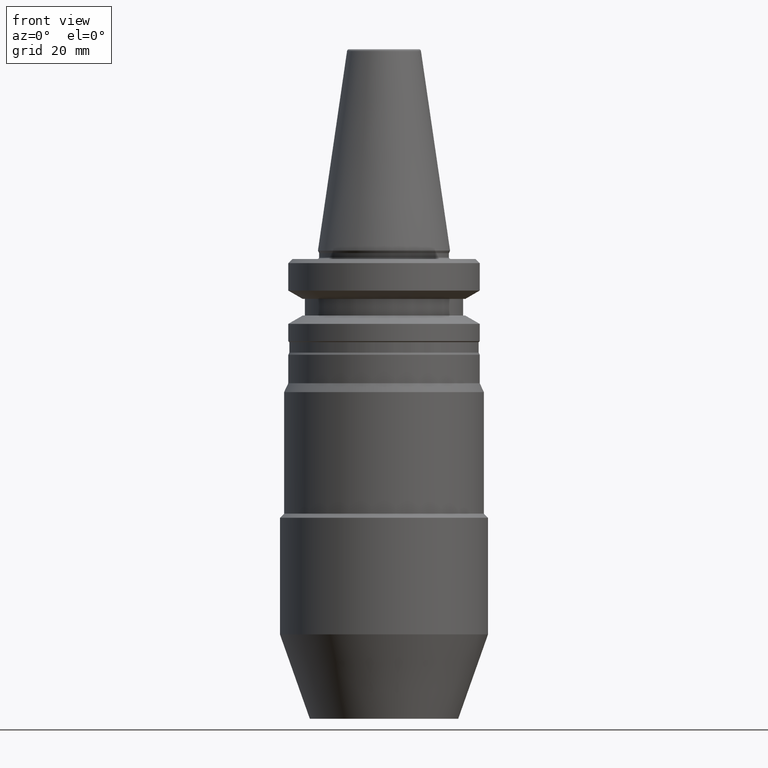
[diagram: clean part render]
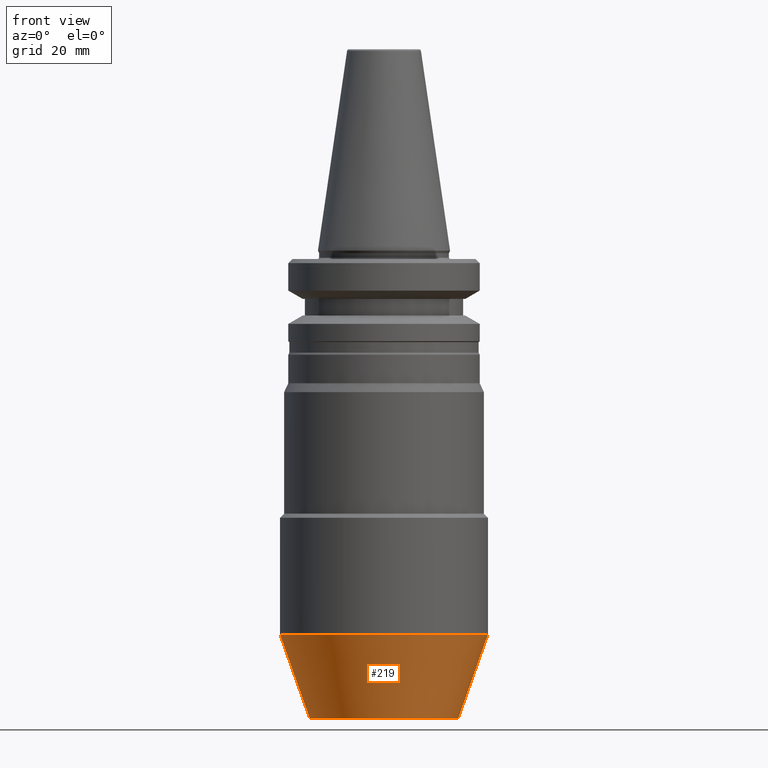
[diagram: same view with one face highlighted and labeled with its STEP entity id]
A machine part, front view. The second image highlights one B-rep face of the part: STEP entity #219.
In plain terms, the highlighted conical surface has half-angle 19.471 deg.
Its self-contained STEP definition (entity closure, byte-faithful):
#15 = DIRECTION ( 'NONE',  ( 1.000000000000000000, 0.0000000000000000000, 0.0000000000000000000 ) ) ;
#19 = VECTOR ( 'NONE', #567, 1000.000000000000000 ) ;
#32 = LINE ( 'NONE', #577, #19 ) ;
#41 = CARTESIAN_POINT ( 'NONE',  ( 17.82286618470424600, 0.0000000000000000000, -112.6500000000000200 ) ) ;
#44 = AXIS2_PLACEMENT_3D ( 'NONE', #221, #571, #467 ) ;
#54 = ORIENTED_EDGE ( 'NONE', *, *, #422, .T. ) ;
#91 = VERTEX_POINT ( 'NONE', #41 ) ;
#134 = AXIS2_PLACEMENT_3D ( 'NONE', #658, #858, #15 ) ;
#191 = AXIS2_PLACEMENT_3D ( 'NONE', #1089, #749, #290 ) ;
#219 = ADVANCED_FACE ( 'NONE', ( #411 ), #395, .T. ) ;
#221 = CARTESIAN_POINT ( 'NONE',  ( 0.0000000000000000000, 0.0000000000000000000, -92.35000000000002300 ) ) ;
#280 = CIRCLE ( 'NONE', #134, 17.82286618470424600 ) ;
#286 = EDGE_CURVE ( 'NONE', #982, #899, #382, .T. ) ;
#290 = DIRECTION ( 'NONE',  ( 1.000000000000000000, 0.0000000000000000000, 0.0000000000000000000 ) ) ;
#366 = VECTOR ( 'NONE', #546, 1000.000000000000000 ) ;
#382 = LINE ( 'NONE', #950, #366 ) ;
#395 = CONICAL_SURFACE ( 'NONE', #191, 17.82286618470424600, 0.3398369088521414100 ) ;
#411 = FACE_OUTER_BOUND ( 'NONE', #616, .T. ) ;
#416 = ORIENTED_EDGE ( 'NONE', *, *, #286, .F. ) ;
#422 = EDGE_CURVE ( 'NONE', #982, #91, #280, .T. ) ;
#467 = DIRECTION ( 'NONE',  ( 1.000000000000000000, 0.0000000000000000000, 0.0000000000000000000 ) ) ;
#546 = DIRECTION ( 'NONE',  ( -0.3333333327657806400, 4.082155990207328400E-017, 0.9428090417827235100 ) ) ;
#567 = DIRECTION ( 'NONE',  ( 0.3333333327657806400, 0.0000000000000000000, 0.9428090417827235100 ) ) ;
#571 = DIRECTION ( 'NONE',  ( -0.0000000000000000000, -0.0000000000000000000, 1.000000000000000000 ) ) ;
#577 = CARTESIAN_POINT ( 'NONE',  ( 17.82286618470424600, 0.0000000000000000000, -112.6500000000000200 ) ) ;
#616 = EDGE_LOOP ( 'NONE', ( #416, #54, #1040, #651 ) ) ;
#651 = ORIENTED_EDGE ( 'NONE', *, *, #945, .F. ) ;
#658 = CARTESIAN_POINT ( 'NONE',  ( 0.0000000000000000000, 0.0000000000000000000, -112.6500000000000200 ) ) ;
#669 = EDGE_CURVE ( 'NONE', #91, #1097, #32, .T. ) ;
#749 = DIRECTION ( 'NONE',  ( -0.0000000000000000000, -0.0000000000000000000, 1.000000000000000000 ) ) ;
#858 = DIRECTION ( 'NONE',  ( -0.0000000000000000000, -0.0000000000000000000, 1.000000000000000000 ) ) ;
#899 = VERTEX_POINT ( 'NONE', #1164 ) ;
#945 = EDGE_CURVE ( 'NONE', #899, #1097, #1093, .T. ) ;
#950 = CARTESIAN_POINT ( 'NONE',  ( -17.82286618470424600, 2.182671602472965500E-015, -112.6500000000000200 ) ) ;
#982 = VERTEX_POINT ( 'NONE', #1025 ) ;
#1025 = CARTESIAN_POINT ( 'NONE',  ( -17.82286618470424600, 2.622144300170672100E-015, -112.6500000000000200 ) ) ;
#1040 = ORIENTED_EDGE ( 'NONE', *, *, #669, .T. ) ;
#1088 = CARTESIAN_POINT ( 'NONE',  ( 24.99999999999996800, 0.0000000000000000000, -92.35000000000002300 ) ) ;
#1089 = CARTESIAN_POINT ( 'NONE',  ( 0.0000000000000000000, 0.0000000000000000000, -112.6500000000000200 ) ) ;
#1093 = CIRCLE ( 'NONE', #44, 24.99999999999996800 ) ;
#1097 = VERTEX_POINT ( 'NONE', #1088 ) ;
#1164 = CARTESIAN_POINT ( 'NONE',  ( -24.99999999999996800, 3.061616997868379100E-015, -92.35000000000002300 ) ) ;